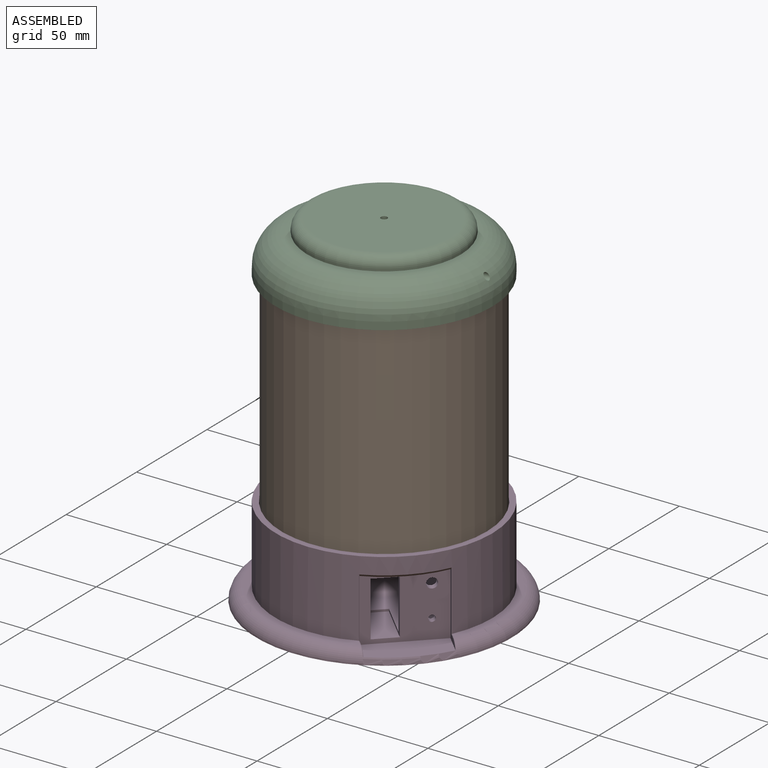
[diagram: assembled view]
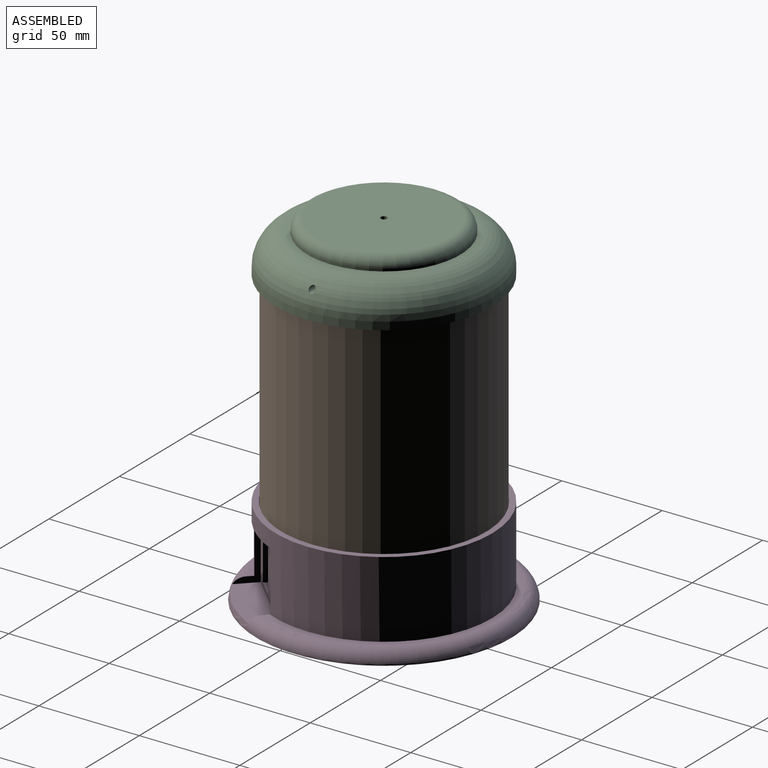
[diagram: assembled view, second angle]
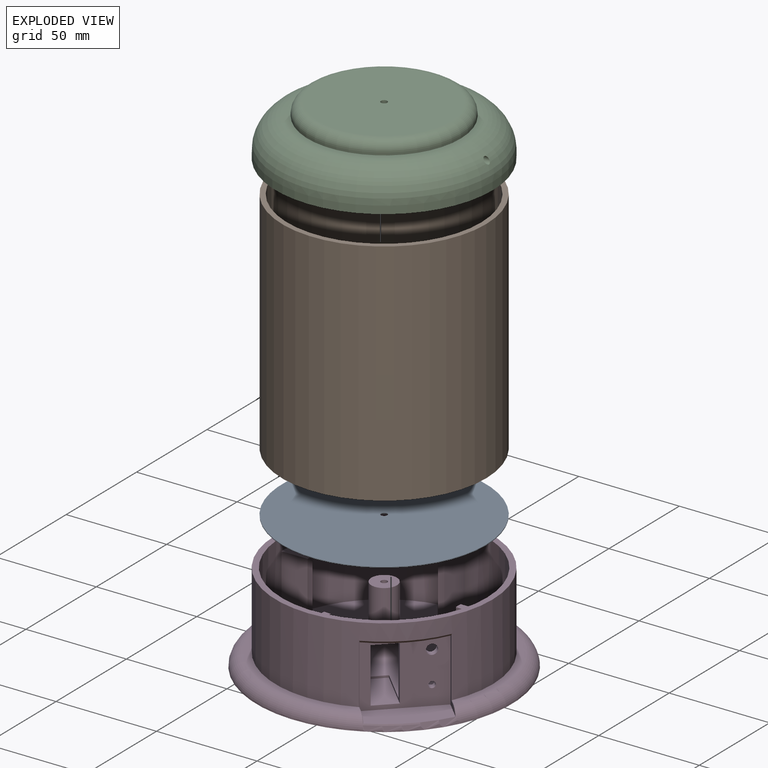
[diagram: exploded view]
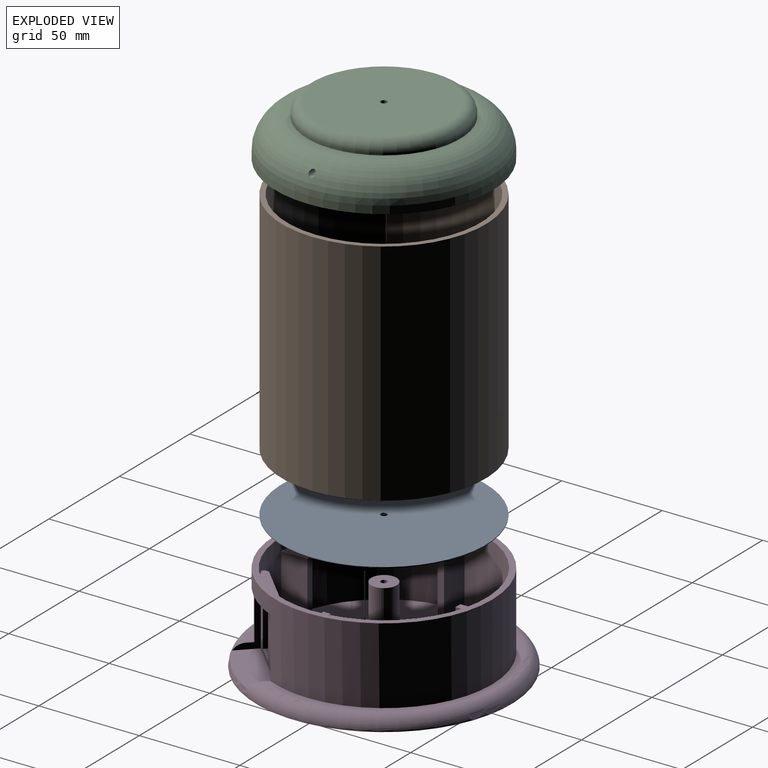
[diagram: exploded view, second angle]
ASSEMBLY  parts=4 mates=3
PART A: 4 faces, bbox 101.6x101.6x0.4 mm
  f0: cylinder r=1.59mm len=3.18mm, axis (0,0,-1), area 3.8mm2, adj f2,f3
  f1: cylinder r=50.8mm len=101.6mm, axis (0,0,-1), area 121.6mm2, adj f2,f3
  f2: plane 101.6x101.6mm, normal (0,0,1), area 8099.4mm2, adj f0,f1
  f3: plane 101.6x101.6mm, normal (0,0,-1), area 8099.4mm2, adj f0,f1
PART B: 4 faces, bbox 101.6x101.6x114.3 mm
  f0: cylinder r=48.26mm len=114.3mm, axis (0,0,-1), area 34658.8mm2, adj f2,f3
  f1: cylinder r=50.8mm len=114.3mm, axis (0,0,-1), area 36482.9mm2, adj f2,f3
  f2: plane 101.6x101.6mm, normal (0,0,1), area 790.5mm2, adj f0,f1
  f3: plane 101.6x101.6mm, normal (0,0,-1), area 790.5mm2, adj f0,f1
PART C: 17 faces, bbox 116.8x116.8x32.4 mm
  f0: torus R=38.73mm, axis (0,0,-1), area 3096.9mm2, adj f2,f3,f13,f14,f15
  f1: torus R=38.73mm, axis (0,0,-1), area 7265.6mm2, adj f5,f9,f13,f14
  f2: plane 77.41x37.15mm, normal (0,0,-1), area 751.2mm2, adj f0,f4,f13,f14
  f3: plane 77.41x37.15mm, normal (0,0,-1), area 751.2mm2, adj f0,f4,f13,f14
  f4: cylinder r=31.75mm len=63.5mm, axis (0,0,-1), area 1258.8mm2, adj f2,f3,f11,f13,f14
  f5: plane 77.47x77.47mm, normal (0,0,1), area 153.3mm2, adj f1,f6
  f6: cylinder r=38.1mm len=76.2mm, axis (0,0,-1), area 304mm2, adj f5,f10
  f7: plane 66.04x66.04mm, normal (0,0,1), area 3417.4mm2, adj f10,f12
  f8: plane 107.95x107.95mm, normal (0,0,-1), area 963.8mm2, adj f9,f16
  f9: cylinder r=53.98mm len=107.95mm, axis (0,0,-1), area 1292.1mm2, adj f1,f8
  f10: torus R=33.02mm, axis (0,0,-1), area 1817.7mm2, adj f6,f7
  f11: plane 63.5x63.5mm, normal (0,0,-1), area 3159mm2, adj f4,f12
  f12: cylinder r=1.59mm len=6.35mm, axis (0,0,-1), area 63.3mm2, adj f7,f11
  f13: cylinder r=1.59mm len=20.4mm, axis (1,0,0), area 138mm2, adj f0,f1,f2,f3,f4
  f14: cylinder r=1.59mm len=20.4mm, axis (-1,0,0), area 138.1mm2, adj f0,f1,f2,f3,f4
  f15: plane 102.11x102.11mm, normal (0,0,-1), area 1173.5mm2, adj f0,f16
  f16: cylinder r=51.05mm len=102.11mm, axis (0,0,-1), area 2037mm2, adj f8,f15
PART D: 53 faces, bbox 137.5x137.5x44.5 mm
  f0: cylinder r=51.05mm len=102.11mm, axis (0,0,1), area 10416.3mm2, adj f6,f7,f10,f11,f12,f14,f15,f16
  f1: plane 35.59x35.59mm, normal (0,0,1), area 535.2mm2, adj f5,f25,f26,f27,f30,f40
  f2: plane 28.01x28.01mm, normal (0,0,-1), area 148.9mm2, adj f25,f26,f33,f40
  f3: plane 114.3x114.3mm, normal (0,0,1), area 983.6mm2, adj f4,f5,f28,f29,f31,f32
  f4: cylinder r=53.98mm len=107.95mm, axis (0,0,-1), area 11742.1mm2, adj f3,f7,f28,f31,f33
  f5: torus R=57.15mm, axis (0,0,1), area 3572.5mm2, adj f1,f3,f8,f27,f30
  f6: plane 102.11x102.11mm, normal (0,0,1), area 7104.6mm2, adj f0,f9,f10,f11,f13,f14,f15,f17
  f7: plane 107.95x107.95mm, normal (0,0,1), area 963.8mm2, adj f0,f4
  f8: plane 127x127mm, normal (0,0,-1), area 12667.7mm2, adj f5
  f9: cylinder r=38.1mm len=31.75mm, axis (0,0,-1), area 105.6mm2, adj f6,f10,f11,f12
  f10: plane 31.75x12.9mm, normal (0.09,1,0), area 411.3mm2, adj f0,f6,f9,f12
  f11: plane 31.75x12.95mm, normal (0,-1,0), area 411.3mm2, adj f0,f6,f9,f12
  f12: plane 13.1x4.45mm, normal (0,0,1), area 50.4mm2, adj f0,f9,f10,f11
  f13: cylinder r=38.1mm len=31.75mm, axis (0,0,-1), area 105.6mm2, adj f6,f14,f15,f16
  f14: plane 31.75x12.9mm, normal (1,-0.09,0), area 411.3mm2, adj f0,f6,f13,f16
  f15: plane 31.75x12.95mm, normal (-1,0,0), area 411.3mm2, adj f0,f6,f13,f16
  f16: plane 13.1x4.45mm, normal (0,0,1), area 50.4mm2, adj f0,f13,f14,f15
  f17: cylinder r=38.1mm len=31.75mm, axis (0,0,-1), area 105.6mm2, adj f6,f18,f19,f20
  f18: plane 31.75x12.9mm, normal (-0.09,-1,0), area 411.3mm2, adj f0,f6,f17,f20
  f19: plane 31.75x12.95mm, normal (0,1,0), area 411.3mm2, adj f0,f6,f17,f20
  f20: plane 13.1x4.45mm, normal (0,0,1), area 50.4mm2, adj f0,f17,f18,f19
  f21: cylinder r=38.1mm len=31.75mm, axis (0,0,-1), area 105.6mm2, adj f6,f22,f23,f24
  f22: plane 31.75x12.9mm, normal (-1,0.09,0), area 411.3mm2, adj f0,f6,f21,f24
  f23: plane 31.75x12.95mm, normal (1,0,0), area 411.3mm2, adj f0,f6,f21,f24
  f24: plane 13.1x4.45mm, normal (0,0,1), area 50.4mm2, adj f0,f21,f22,f23
  f25: plane 32.81x8.37mm, normal (0.71,0.71,0), area 105.4mm2, adj f1,f2,f30,f31,f32,f33,f40
  f26: plane 32.81x8.37mm, normal (-0.71,-0.71,0), area 105.4mm2, adj f1,f2,f27,f28,f29,f33,f40
  f27: bspline ~4.41x4.25mm, area 2mm2, adj f1,f5,f26,f29
  f28: plane 30.04x0.31mm, normal (0.18,-0.98,0), area 9.5mm2, adj f3,f4,f26,f29,f33
  f29: plane 2.68x2.58mm, normal (-0.5,-0.5,0.71), area 1mm2, adj f3,f26,f27,f28
  f30: bspline ~4.41x4.25mm, area 2mm2, adj f1,f5,f25,f32
  f31: plane 30.04x0.31mm, normal (0.98,-0.18,0), area 9.5mm2, adj f3,f4,f25,f32,f33
  f32: plane 2.68x2.58mm, normal (0.5,0.5,0.71), area 1mm2, adj f3,f25,f30,f31
  f33: cone r=52.7mm half-angle=45deg, axis (0,0,1), area 70.1mm2, adj f2,f4,f25,f26,f28,f31
  f34: cylinder r=6.35mm len=26.67mm, axis (0,0,-1), area 1064.1mm2, adj f35,f38
  f35: plane 12.7x12.7mm, normal (0,0,1), area 118.8mm2, adj f34,f36
  f36: cylinder r=1.59mm len=12.7mm, axis (0,0,1), area 126.7mm2, adj f35,f37
  f37: plane 3.18x3.18mm, normal (0,0,1), area 7.9mm2, adj f36
  f38: torus R=11.43mm, axis (0,0,1), area 410.9mm2, adj f6,f34
  f39: plane 28.11x28.11mm, normal (0,0,1), area 203.9mm2, adj f0,f41,f42,f43,f44,f45
  f40: plane 31.75x26.94mm, normal (0.71,-0.71,0), area 854.2mm2, adj f1,f2,f25,f26,f46,f47,f48,f49
  f41: plane 31.75x25.14mm, normal (-0.71,0.71,0), area 786.4mm2, adj f6,f39,f44,f45,f46,f47,f49,f50
  f42: plane 31.75x1.16mm, normal (0.71,0.71,0), area 52.3mm2, adj f0,f6,f39,f44
  f43: plane 31.75x1.16mm, normal (-0.71,-0.71,0), area 52.3mm2, adj f0,f6,f39,f45
  f44: plane 31.75x1.8mm, normal (0,1,0), area 57mm2, adj f6,f39,f41,f42
  f45: plane 31.75x1.8mm, normal (-1,0,0), area 57mm2, adj f6,f39,f41,f43
  f46: cylinder r=2.5mm len=5.78mm, axis (0.71,-0.71,0), area 49.9mm2, adj f40,f41
  f47: plane 27.18x17.96mm, normal (0.71,0.71,0), area 110mm2, adj f6,f40,f41,f48,f50,f51
  f48: plane 26.49x26.49mm, normal (0,0,1), area 306.5mm2, adj f40,f47,f49,f51
  f49: plane 27.18x17.96mm, normal (-0.71,-0.71,0), area 110mm2, adj f6,f40,f41,f48,f50,f51
  f50: plane 10.78x10.78mm, normal (0,0,-1), area 38.3mm2, adj f40,f41,f47,f49
  f51: plane 8.53x8.53mm, normal (0.71,-0.71,0), area 12.9mm2, adj f6,f47,f48,f49
  f52: cylinder r=1.59mm len=4.49mm, axis (0.71,-0.71,0), area 31.7mm2, adj f40,f41
PLACE A t=(-5.36,-2.05,11.53)mm
PLACE B t=(-5.36,-2.05,11.91)mm
PLACE C t=(-5.36,-2.05,119.86)mm
PLACE D t=(-5.36,-2.05,-26.57)mm
MATE fastened C.f0 <-> B.f0  axis (0,0,-1) through (-5.36,-2.05,126.21)mm
MATE fastened D.f0 <-> A.f0  axis (0,0,1) through (-5.36,-2.05,11.53)mm
MATE fastened B.f0 <-> A.f0  axis (0,0,-1) through (-5.36,-2.05,11.91)mm
